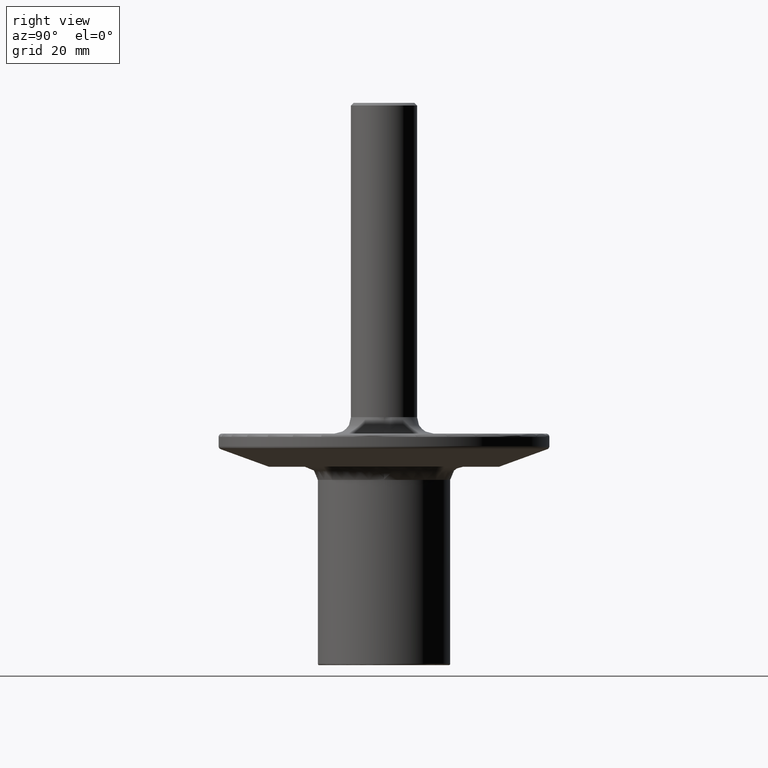
[diagram: clean part render]
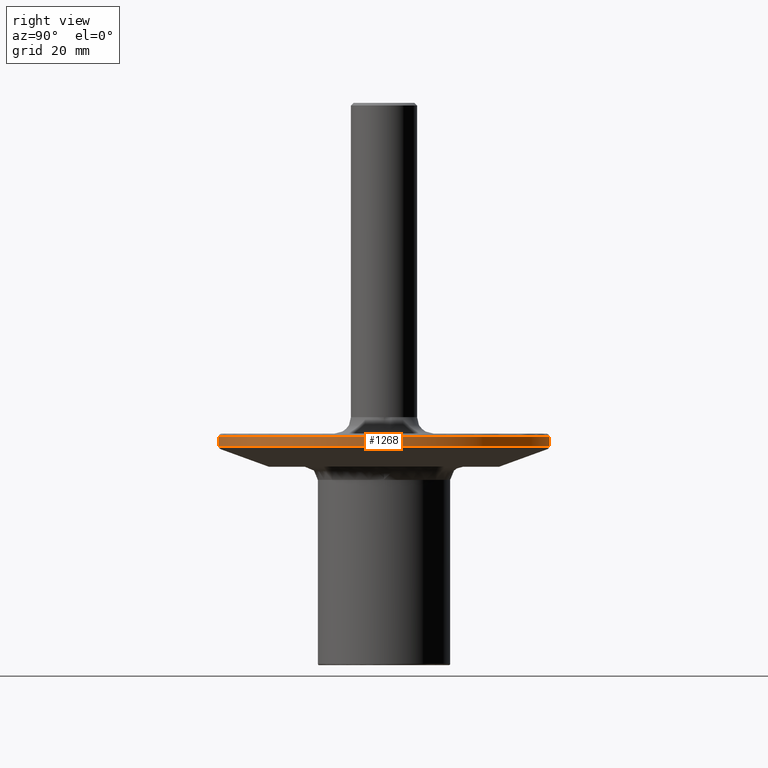
[diagram: same view with one face highlighted and labeled with its STEP entity id]
A machine part, right view. The second image highlights one B-rep face of the part: STEP entity #1268.
In plain terms, the highlighted cylindrical surface (partial cylindrical patch) has radius 31.75 mm, axis along (0, 0, -1).
Its self-contained STEP definition (entity closure, byte-faithful):
#80 = CARTESIAN_POINT ( 'NONE',  ( 0.0000000000000000000, -1.350214263899150100E-015, 1.694000000000000000 ) ) ;
#146 = ORIENTED_EDGE ( 'NONE', *, *, #1713, .F. ) ;
#160 = CARTESIAN_POINT ( 'NONE',  ( 0.0000000000000000000, -1.451463450463849500E-015, 1.725000000000000100 ) ) ;
#200 = CARTESIAN_POINT ( 'NONE',  ( 1.530808498934191600E-016, -1.250000000000001300, 1.693999999999998800 ) ) ;
#219 = AXIS2_PLACEMENT_3D ( 'NONE', #482, #2254, #673 ) ;
#295 = DIRECTION ( 'NONE',  ( 0.0000000000000000000, 7.970568263867499800E-016, -1.000000000000000000 ) ) ;
#300 = EDGE_CURVE ( 'NONE', #776, #358, #1375, .T. ) ;
#358 = VERTEX_POINT ( 'NONE', #2304 ) ;
#416 = VERTEX_POINT ( 'NONE', #1527 ) ;
#434 = VECTOR ( 'NONE', #2159, 39.37007874015748100 ) ;
#470 = ORIENTED_EDGE ( 'NONE', *, *, #300, .T. ) ;
#482 = CARTESIAN_POINT ( 'NONE',  ( 0.0000000000000000000, -1.319531711576927700E-015, 1.655505188455240100 ) ) ;
#603 = EDGE_CURVE ( 'NONE', #358, #2174, #687, .T. ) ;
#673 = DIRECTION ( 'NONE',  ( 0.0000000000000000000, 1.000000000000000000, 8.741913579725642300E-016 ) ) ;
#687 = CIRCLE ( 'NONE', #219, 1.250000000000000000 ) ;
#730 = CYLINDRICAL_SURFACE ( 'NONE', #1852, 1.250000000000000000 ) ;
#776 = VERTEX_POINT ( 'NONE', #1345 ) ;
#853 = DIRECTION ( 'NONE',  ( 0.0000000000000000000, 1.000000000000000000, 8.741913579725642300E-016 ) ) ;
#906 = DIRECTION ( 'NONE',  ( 0.0000000000000000000, -1.000000000000000000, -8.741913579725642300E-016 ) ) ;
#1009 = CARTESIAN_POINT ( 'NONE',  ( 0.0000000000000000000, 1.249999999999998700, 1.655505188455241200 ) ) ;
#1223 = ORIENTED_EDGE ( 'NONE', *, *, #2016, .F. ) ;
#1268 = ADVANCED_FACE ( 'NONE', ( #1809 ), #730, .T. ) ;
#1307 = ORIENTED_EDGE ( 'NONE', *, *, #603, .T. ) ;
#1345 = CARTESIAN_POINT ( 'NONE',  ( 1.530808498934191600E-016, -1.250000000000001300, 1.724999999999999000 ) ) ;
#1375 = LINE ( 'NONE', #200, #1902 ) ;
#1486 = EDGE_LOOP ( 'NONE', ( #1223, #470, #1307, #146 ) ) ;
#1527 = CARTESIAN_POINT ( 'NONE',  ( 0.0000000000000000000, 1.249999999999998700, 1.725000000000000800 ) ) ;
#1713 = EDGE_CURVE ( 'NONE', #416, #2174, #1968, .T. ) ;
#1798 = DIRECTION ( 'NONE',  ( 0.0000000000000000000, 7.970568263867499800E-016, -1.000000000000000000 ) ) ;
#1809 = FACE_OUTER_BOUND ( 'NONE', #1486, .T. ) ;
#1852 = AXIS2_PLACEMENT_3D ( 'NONE', #80, #1798, #853 ) ;
#1902 = VECTOR ( 'NONE', #295, 39.37007874015748100 ) ;
#1924 = CARTESIAN_POINT ( 'NONE',  ( 0.0000000000000000000, 1.249999999999998700, 1.694000000000001100 ) ) ;
#1968 = LINE ( 'NONE', #1924, #434 ) ;
#2016 = EDGE_CURVE ( 'NONE', #776, #416, #2243, .T. ) ;
#2155 = AXIS2_PLACEMENT_3D ( 'NONE', #160, #2276, #906 ) ;
#2159 = DIRECTION ( 'NONE',  ( 0.0000000000000000000, 7.970568263867499800E-016, -1.000000000000000000 ) ) ;
#2174 = VERTEX_POINT ( 'NONE', #1009 ) ;
#2243 = CIRCLE ( 'NONE', #2155, 1.250000000000000000 ) ;
#2254 = DIRECTION ( 'NONE',  ( -0.0000000000000000000, -7.970568263867499800E-016, 1.000000000000000000 ) ) ;
#2276 = DIRECTION ( 'NONE',  ( -0.0000000000000000000, -7.649174382259938000E-016, 1.000000000000000000 ) ) ;
#2304 = CARTESIAN_POINT ( 'NONE',  ( 1.530808498934191800E-016, -1.250000000000001300, 1.655505188455239000 ) ) ;